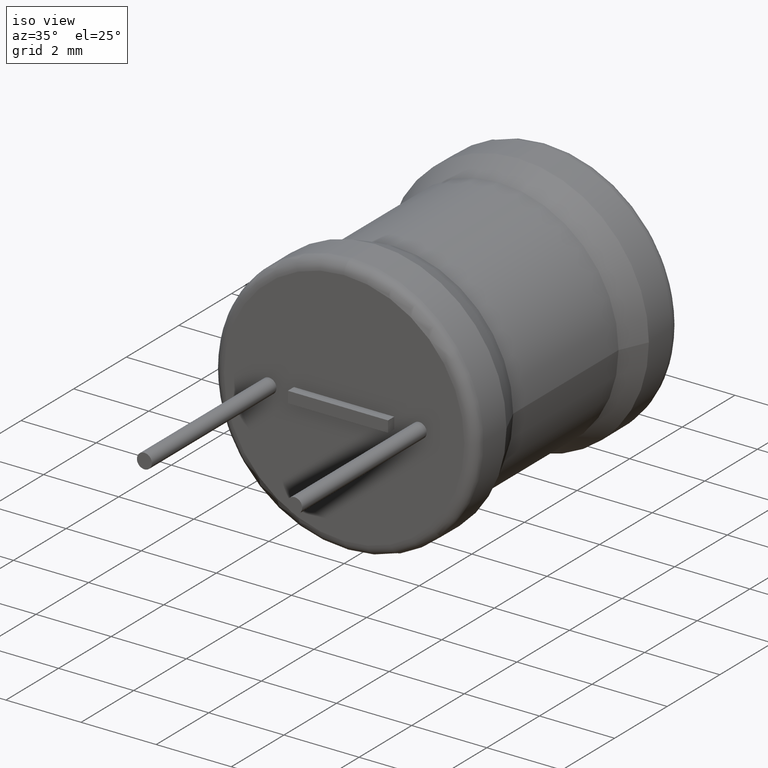
[diagram: clean part render]
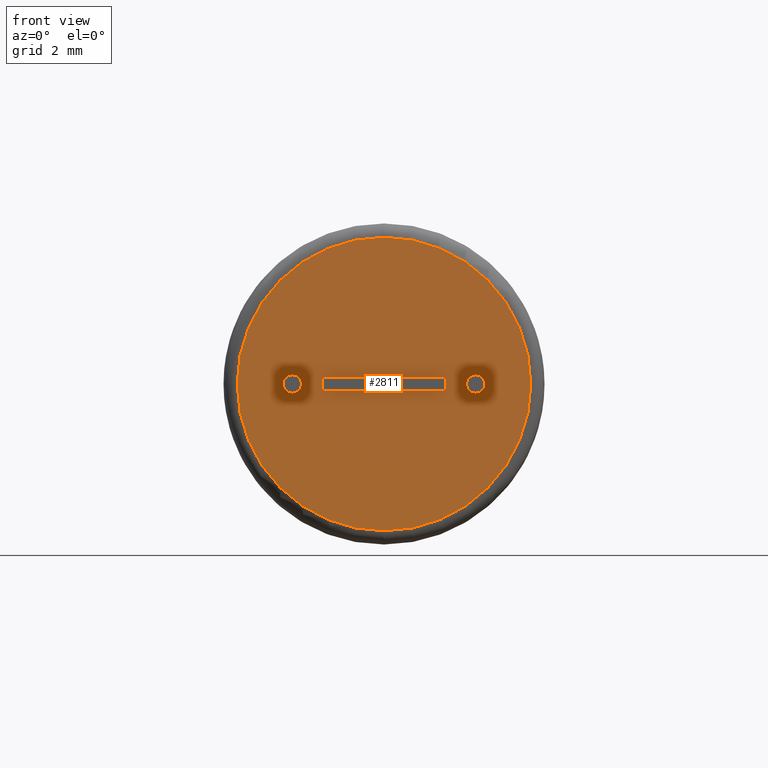
[diagram: tour spotlight — one face highlighted and labeled with its STEP entity id]
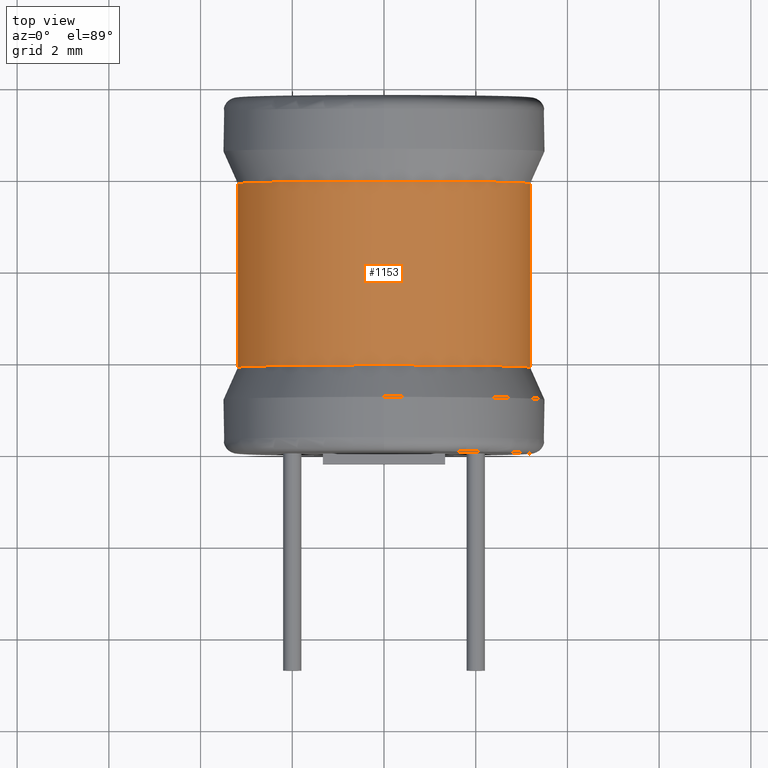
[diagram: tour spotlight — one face highlighted and labeled with its STEP entity id]
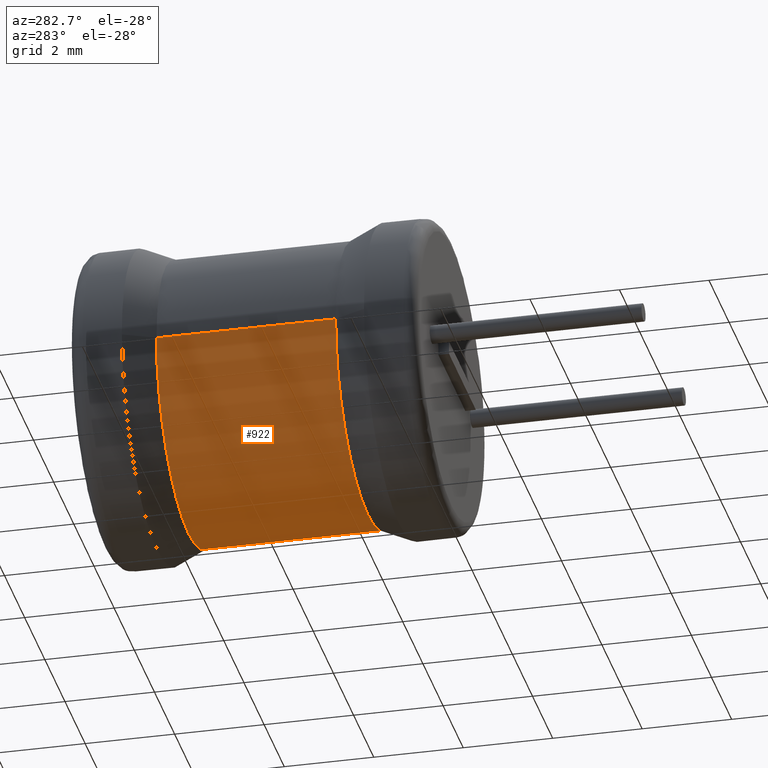
[diagram: tour spotlight — one face highlighted and labeled with its STEP entity id]
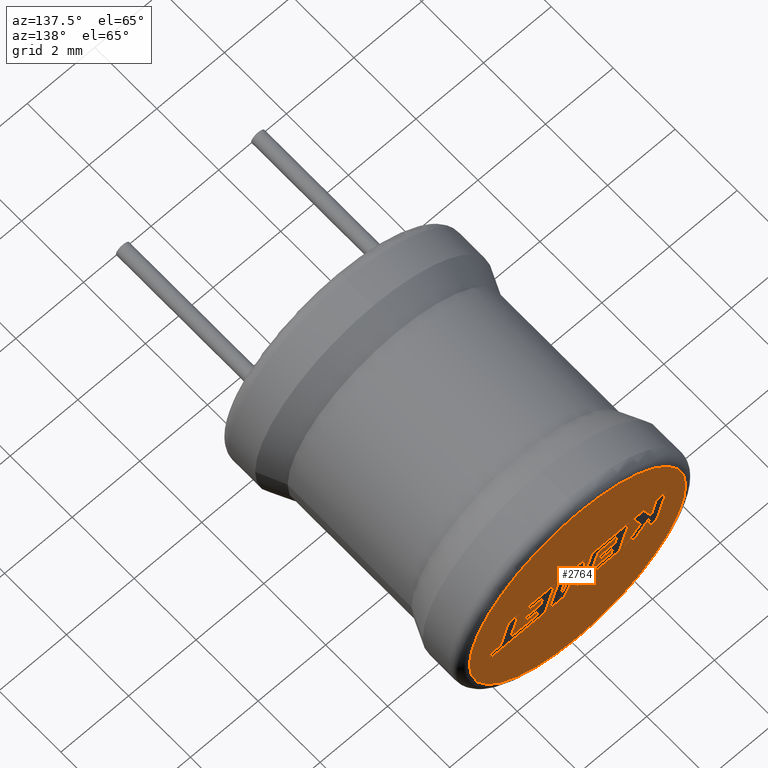
[diagram: tour spotlight — one face highlighted and labeled with its STEP entity id]
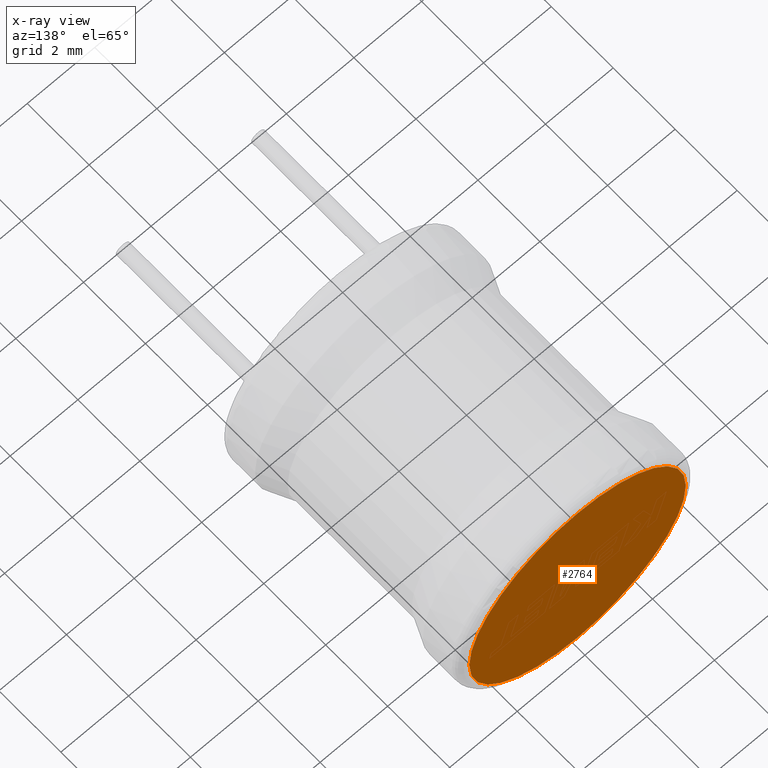
[diagram: x-ray of the same camera — body ghosted, this tour face saturated]
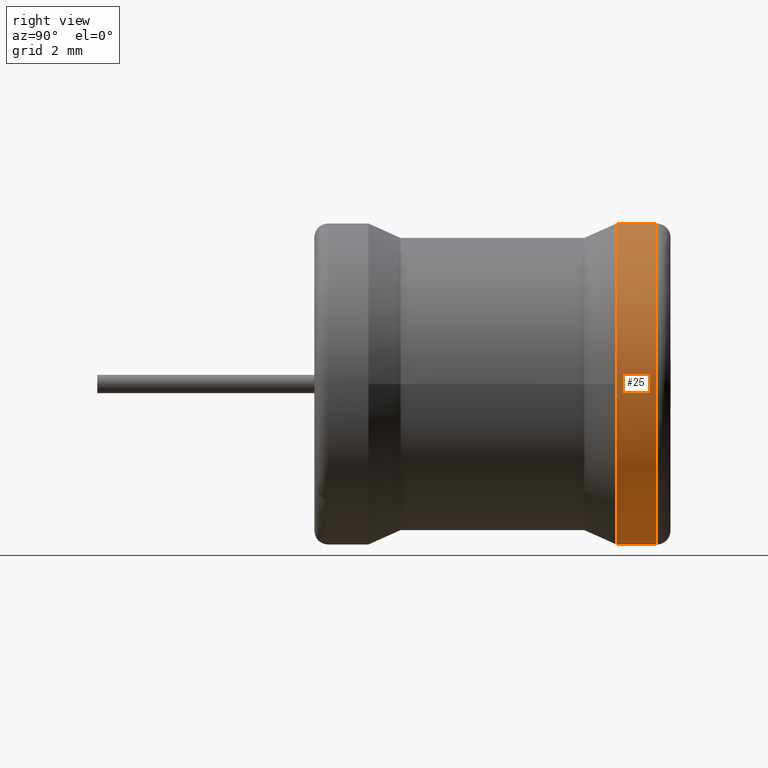
[diagram: tour spotlight — one face highlighted and labeled with its STEP entity id]
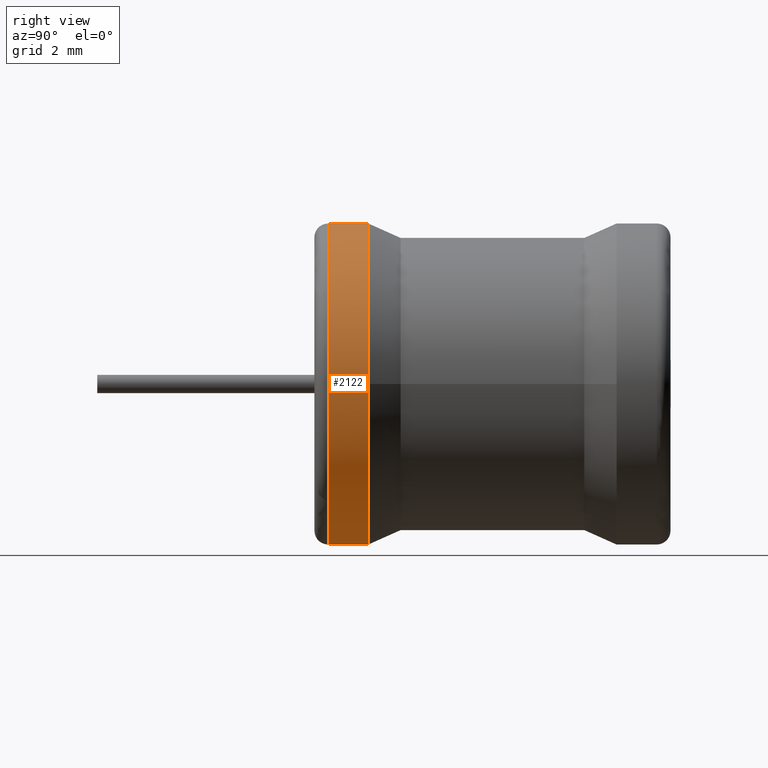
[diagram: tour spotlight — one face highlighted and labeled with its STEP entity id]
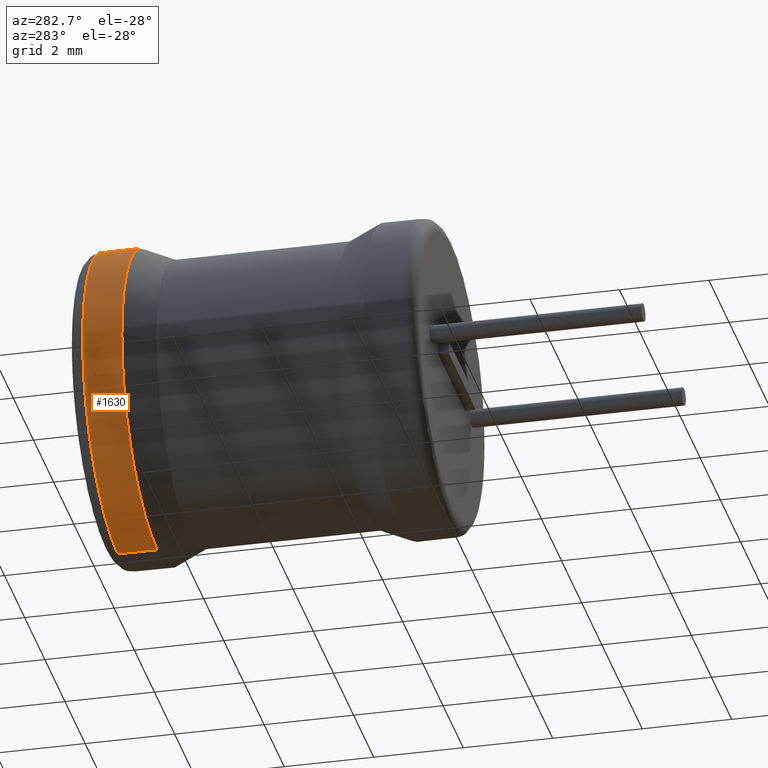
[diagram: tour spotlight — one face highlighted and labeled with its STEP entity id]
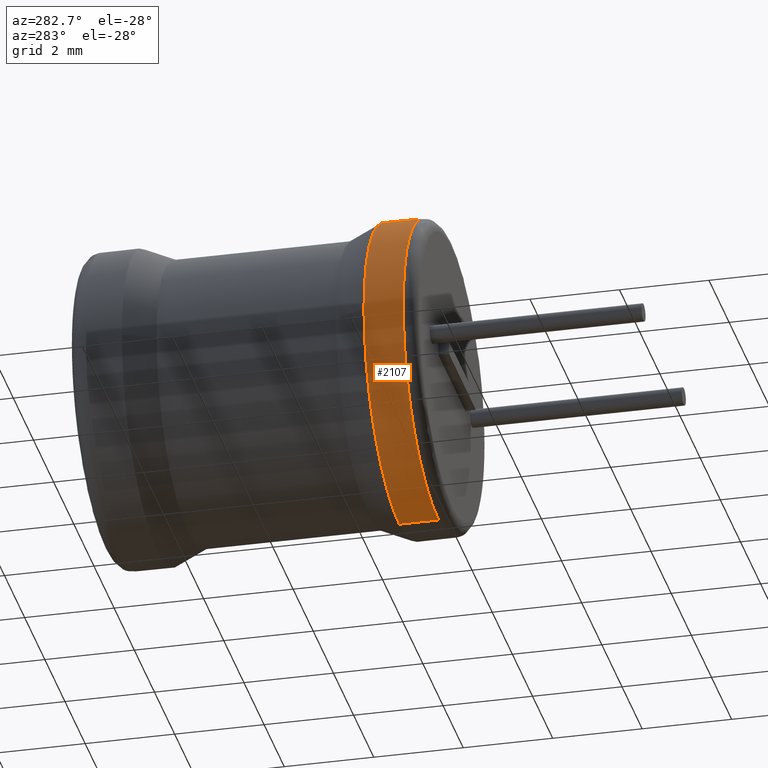
[diagram: tour spotlight — one face highlighted and labeled with its STEP entity id]
A machine part: a face-by-face anatomy tour. The part has 84 B-rep faces; the first image is the clean iso view, then the 8 largest visible faces are spotlighted one at a time (largest first), each with its STEP entity span.

Face 1 — front view, entity #2811. In plain terms, the highlighted planar face has unit normal (0, 1, 0).
Definition (entity closure, byte-faithful):
#4 = CARTESIAN_POINT ( 'NONE',  ( 2.000000000000000000, 0.0000000000000000000, -0.2000000000000002300 ) ) ;
#86 = LINE ( 'NONE', #212, #1811 ) ;
#178 = EDGE_LOOP ( 'NONE', ( #1290, #2364 ) ) ;
#193 = VERTEX_POINT ( 'NONE', #1120 ) ;
#212 = CARTESIAN_POINT ( 'NONE',  ( 6.018531076210112000E-033, 0.0000000000000000000, -0.1500000000000002700 ) ) ;
#216 = EDGE_CURVE ( 'NONE', #2393, #457, #1850, .T. ) ;
#243 = CARTESIAN_POINT ( 'NONE',  ( 4.102566777143633300E-016, 0.0000000000000000000, -3.200000000000000200 ) ) ;
#278 = VECTOR ( 'NONE', #2147, 1000.000000000000000 ) ;
#311 = CARTESIAN_POINT ( 'NONE',  ( 0.0000000000000000000, 0.0000000000000000000, 3.200000000000000200 ) ) ;
#339 = ORIENTED_EDGE ( 'NONE', *, *, #2877, .F. ) ;
#397 = LINE ( 'NONE', #1354, #718 ) ;
#419 = ORIENTED_EDGE ( 'NONE', *, *, #750, .F. ) ;
#436 = DIRECTION ( 'NONE',  ( -0.0000000000000000000, 1.000000000000000000, -0.0000000000000000000 ) ) ;
#457 = VERTEX_POINT ( 'NONE', #2369 ) ;
#510 = ORIENTED_EDGE ( 'NONE', *, *, #216, .T. ) ;
#528 = DIRECTION ( 'NONE',  ( 0.0000000000000000000, 1.000000000000000000, 0.0000000000000000000 ) ) ;
#611 = DIRECTION ( 'NONE',  ( -0.0000000000000000000, -1.000000000000000000, -0.0000000000000000000 ) ) ;
#689 = CARTESIAN_POINT ( 'NONE',  ( 2.000000000000000000, 0.0000000000000000000, 0.0000000000000000000 ) ) ;
#693 = AXIS2_PLACEMENT_3D ( 'NONE', #689, #436, #2735 ) ;
#718 = VECTOR ( 'NONE', #2348, 1000.000000000000000 ) ;
#750 = EDGE_CURVE ( 'NONE', #788, #193, #1908, .T. ) ;
#776 = CARTESIAN_POINT ( 'NONE',  ( -2.000000000000000000, 0.0000000000000000000, 0.0000000000000000000 ) ) ;
#788 = VERTEX_POINT ( 'NONE', #1057 ) ;
#797 = ORIENTED_EDGE ( 'NONE', *, *, #1820, .F. ) ;
#873 = DIRECTION ( 'NONE',  ( 0.0000000000000000000, -0.0000000000000000000, -1.000000000000000000 ) ) ;
#879 = DIRECTION ( 'NONE',  ( 0.0000000000000000000, 0.0000000000000000000, 1.000000000000000000 ) ) ;
#882 = VERTEX_POINT ( 'NONE', #311 ) ;
#890 = VERTEX_POINT ( 'NONE', #1404 ) ;
#914 = CIRCLE ( 'NONE', #2507, 3.200000000000000200 ) ;
#967 = EDGE_LOOP ( 'NONE', ( #2049, #1715, #2336, #339 ) ) ;
#977 = EDGE_CURVE ( 'NONE', #2838, #890, #1474, .T. ) ;
#1037 = CARTESIAN_POINT ( 'NONE',  ( 0.0000000000000000000, 0.0000000000000000000, 0.0000000000000000000 ) ) ;
#1045 = AXIS2_PLACEMENT_3D ( 'NONE', #1037, #2646, #1713 ) ;
#1057 = CARTESIAN_POINT ( 'NONE',  ( -2.000000000000000000, 0.0000000000000000000, 0.2000000000000002300 ) ) ;
#1107 = CARTESIAN_POINT ( 'NONE',  ( 1.334000000000000100, -0.0000000000000000000, -0.1500000000000006900 ) ) ;
#1114 = EDGE_LOOP ( 'NONE', ( #419, #797 ) ) ;
#1120 = CARTESIAN_POINT ( 'NONE',  ( -2.000000000000000000, 0.0000000000000000000, -0.2000000000000002300 ) ) ;
#1164 = CARTESIAN_POINT ( 'NONE',  ( 0.0000000000000000000, 0.0000000000000000000, 0.0000000000000000000 ) ) ;
#1168 = VECTOR ( 'NONE', #873, 1000.000000000000000 ) ;
#1264 = CIRCLE ( 'NONE', #1929, 0.2000000000000002300 ) ;
#1290 = ORIENTED_EDGE ( 'NONE', *, *, #1940, .T. ) ;
#1321 = CARTESIAN_POINT ( 'NONE',  ( 2.000000000000000000, 0.0000000000000000000, 0.0000000000000000000 ) ) ;
#1335 = AXIS2_PLACEMENT_3D ( 'NONE', #1988, #611, #2002 ) ;
#1354 = CARTESIAN_POINT ( 'NONE',  ( 0.0000000000000000000, 0.0000000000000000000, 0.1499999999999996300 ) ) ;
#1404 = CARTESIAN_POINT ( 'NONE',  ( -1.334000000000000100, 0.0000000000000000000, -0.1500000000000006900 ) ) ;
#1474 = LINE ( 'NONE', #1694, #278 ) ;
#1490 = EDGE_CURVE ( 'NONE', #2863, #882, #914, .T. ) ;
#1549 = DIRECTION ( 'NONE',  ( 1.000000000000000000, 0.0000000000000000000, 3.047794712759101800E-016 ) ) ;
#1566 = VERTEX_POINT ( 'NONE', #1107 ) ;
#1571 = DIRECTION ( 'NONE',  ( 0.0000000000000000000, 0.0000000000000000000, -1.000000000000000000 ) ) ;
#1688 = CIRCLE ( 'NONE', #2640, 0.2000000000000002300 ) ;
#1694 = CARTESIAN_POINT ( 'NONE',  ( -1.334000000000000100, -0.0000000000000000000, -0.1500000000000006900 ) ) ;
#1713 = DIRECTION ( 'NONE',  ( 0.0000000000000000000, 0.0000000000000000000, 1.000000000000000000 ) ) ;
#1715 = ORIENTED_EDGE ( 'NONE', *, *, #2754, .F. ) ;
#1740 = CARTESIAN_POINT ( 'NONE',  ( 1.334000000000000100, 0.0000000000000000000, 0.1499999999999992700 ) ) ;
#1811 = VECTOR ( 'NONE', #1549, 1000.000000000000000 ) ;
#1820 = EDGE_CURVE ( 'NONE', #193, #788, #1264, .T. ) ;
#1834 = EDGE_LOOP ( 'NONE', ( #1901, #510 ) ) ;
#1850 = CIRCLE ( 'NONE', #693, 0.2000000000000002300 ) ;
#1875 = FACE_OUTER_BOUND ( 'NONE', #178, .T. ) ;
#1901 = ORIENTED_EDGE ( 'NONE', *, *, #2400, .T. ) ;
#1908 = CIRCLE ( 'NONE', #1335, 0.2000000000000002300 ) ;
#1929 = AXIS2_PLACEMENT_3D ( 'NONE', #776, #2846, #2382 ) ;
#1940 = EDGE_CURVE ( 'NONE', #882, #2863, #2368, .T. ) ;
#1959 = VERTEX_POINT ( 'NONE', #1740 ) ;
#1988 = CARTESIAN_POINT ( 'NONE',  ( -2.000000000000000000, 0.0000000000000000000, 0.0000000000000000000 ) ) ;
#2002 = DIRECTION ( 'NONE',  ( 0.0000000000000000000, 0.0000000000000000000, 1.000000000000000000 ) ) ;
#2020 = CARTESIAN_POINT ( 'NONE',  ( 1.334000000000000100, -0.0000000000000000000, -0.1500000000000006900 ) ) ;
#2049 = ORIENTED_EDGE ( 'NONE', *, *, #2119, .T. ) ;
#2110 = CARTESIAN_POINT ( 'NONE',  ( -1.334000000000000100, 0.0000000000000000000, 0.1499999999999992700 ) ) ;
#2119 = EDGE_CURVE ( 'NONE', #1959, #1566, #2645, .T. ) ;
#2147 = DIRECTION ( 'NONE',  ( -0.0000000000000000000, -0.0000000000000000000, -1.000000000000000000 ) ) ;
#2322 = AXIS2_PLACEMENT_3D ( 'NONE', #1164, #528, #2805 ) ;
#2336 = ORIENTED_EDGE ( 'NONE', *, *, #977, .F. ) ;
#2339 = FACE_BOUND ( 'NONE', #1114, .T. ) ;
#2348 = DIRECTION ( 'NONE',  ( -1.000000000000000000, 0.0000000000000000000, -2.641422084391221300E-016 ) ) ;
#2364 = ORIENTED_EDGE ( 'NONE', *, *, #1490, .T. ) ;
#2368 = CIRCLE ( 'NONE', #1045, 3.200000000000000200 ) ;
#2369 = CARTESIAN_POINT ( 'NONE',  ( 2.000000000000000000, 0.0000000000000000000, 0.2000000000000002300 ) ) ;
#2382 = DIRECTION ( 'NONE',  ( 0.0000000000000000000, 0.0000000000000000000, 1.000000000000000000 ) ) ;
#2393 = VERTEX_POINT ( 'NONE', #4 ) ;
#2400 = EDGE_CURVE ( 'NONE', #457, #2393, #1688, .T. ) ;
#2507 = AXIS2_PLACEMENT_3D ( 'NONE', #2965, #2937, #879 ) ;
#2640 = AXIS2_PLACEMENT_3D ( 'NONE', #1321, #2964, #1571 ) ;
#2645 = LINE ( 'NONE', #2020, #1168 ) ;
#2646 = DIRECTION ( 'NONE',  ( -0.0000000000000000000, -1.000000000000000000, -0.0000000000000000000 ) ) ;
#2655 = FACE_BOUND ( 'NONE', #967, .T. ) ;
#2735 = DIRECTION ( 'NONE',  ( 0.0000000000000000000, 0.0000000000000000000, -1.000000000000000000 ) ) ;
#2754 = EDGE_CURVE ( 'NONE', #890, #1566, #86, .T. ) ;
#2803 = PLANE ( 'NONE',  #2322 ) ;
#2805 = DIRECTION ( 'NONE',  ( 0.0000000000000000000, -0.0000000000000000000, 1.000000000000000000 ) ) ;
#2811 = ADVANCED_FACE ( 'NONE', ( #2339, #2845, #1875, #2655 ), #2803, .F. ) ;
#2838 = VERTEX_POINT ( 'NONE', #2110 ) ;
#2845 = FACE_BOUND ( 'NONE', #1834, .T. ) ;
#2846 = DIRECTION ( 'NONE',  ( -0.0000000000000000000, -1.000000000000000000, -0.0000000000000000000 ) ) ;
#2863 = VERTEX_POINT ( 'NONE', #243 ) ;
#2877 = EDGE_CURVE ( 'NONE', #1959, #2838, #397, .T. ) ;
#2937 = DIRECTION ( 'NONE',  ( -0.0000000000000000000, -1.000000000000000000, -0.0000000000000000000 ) ) ;
#2964 = DIRECTION ( 'NONE',  ( -0.0000000000000000000, 1.000000000000000000, -0.0000000000000000000 ) ) ;
#2965 = CARTESIAN_POINT ( 'NONE',  ( 0.0000000000000000000, 0.0000000000000000000, 0.0000000000000000000 ) ) ;

Face 2 — top view, entity #1153. In plain terms, the highlighted cylindrical surface (partial cylindrical patch) has radius 3.185 mm, axis along (0, -1, -0).
Definition (entity closure, byte-faithful):
#2 = EDGE_CURVE ( 'NONE', #956, #679, #966, .T. ) ;
#95 = EDGE_LOOP ( 'NONE', ( #1437, #965, #332, #2424 ) ) ;
#290 = DIRECTION ( 'NONE',  ( 8.070266646938738300E-018, -1.000000000000000000, -0.0000000000000000000 ) ) ;
#332 = ORIENTED_EDGE ( 'NONE', *, *, #1403, .F. ) ;
#349 = EDGE_CURVE ( 'NONE', #460, #475, #939, .T. ) ;
#411 = AXIS2_PLACEMENT_3D ( 'NONE', #2018, #643, #422 ) ;
#422 = DIRECTION ( 'NONE',  ( 1.000000000000000000, 8.070266646938749100E-018, 0.0000000000000000000 ) ) ;
#460 = VERTEX_POINT ( 'NONE', #2153 ) ;
#471 = FACE_OUTER_BOUND ( 'NONE', #95, .T. ) ;
#475 = VERTEX_POINT ( 'NONE', #2609 ) ;
#504 = DIRECTION ( 'NONE',  ( 1.000000000000000000, 0.0000000000000000000, 0.0000000000000000000 ) ) ;
#643 = DIRECTION ( 'NONE',  ( 8.070266646938738300E-018, -1.000000000000000000, -0.0000000000000000000 ) ) ;
#679 = VERTEX_POINT ( 'NONE', #1611 ) ;
#722 = CARTESIAN_POINT ( 'NONE',  ( 3.184999999999999600, 5.308706039187835700E-016, 0.0000000000000000000 ) ) ;
#889 = VECTOR ( 'NONE', #1234, 1000.000000000000000 ) ;
#939 = LINE ( 'NONE', #722, #2745 ) ;
#956 = VERTEX_POINT ( 'NONE', #2210 ) ;
#965 = ORIENTED_EDGE ( 'NONE', *, *, #2, .T. ) ;
#966 = LINE ( 'NONE', #1739, #889 ) ;
#1116 = DIRECTION ( 'NONE',  ( 1.000000000000000000, 0.0000000000000000000, 0.0000000000000000000 ) ) ;
#1153 = ADVANCED_FACE ( 'NONE', ( #471 ), #1439, .T. ) ;
#1230 = AXIS2_PLACEMENT_3D ( 'NONE', #2328, #2797, #504 ) ;
#1234 = DIRECTION ( 'NONE',  ( 8.070266646938738300E-018, -1.000000000000000000, -0.0000000000000000000 ) ) ;
#1403 = EDGE_CURVE ( 'NONE', #475, #679, #2204, .T. ) ;
#1437 = ORIENTED_EDGE ( 'NONE', *, *, #2437, .T. ) ;
#1439 = CYLINDRICAL_SURFACE ( 'NONE', #411, 3.184999999999999600 ) ;
#1611 = CARTESIAN_POINT ( 'NONE',  ( -3.184999999999999600, 1.880000000000003400, 3.900500055284319300E-016 ) ) ;
#1617 = AXIS2_PLACEMENT_3D ( 'NONE', #2482, #2272, #1116 ) ;
#1739 = CARTESIAN_POINT ( 'NONE',  ( -3.184999999999999600, 4.794630053777836700E-016, 3.900500055284319300E-016 ) ) ;
#2018 = CARTESIAN_POINT ( 'NONE',  ( 1.710569414459005200E-046, 5.051668046482836700E-016, 0.0000000000000000000 ) ) ;
#2153 = CARTESIAN_POINT ( 'NONE',  ( 3.184999999999999600, 5.884800000000001100, 4.093381926150028000E-016 ) ) ;
#2204 = CIRCLE ( 'NONE', #1230, 3.184999999999999600 ) ;
#2210 = CARTESIAN_POINT ( 'NONE',  ( -3.184999999999999600, 5.884800000000001100, 0.0000000000000000000 ) ) ;
#2272 = DIRECTION ( 'NONE',  ( 8.070266646938738300E-018, -1.000000000000000000, -0.0000000000000000000 ) ) ;
#2328 = CARTESIAN_POINT ( 'NONE',  ( -1.517210129624485300E-017, 1.880000000000003400, 0.0000000000000000000 ) ) ;
#2424 = ORIENTED_EDGE ( 'NONE', *, *, #349, .F. ) ;
#2437 = EDGE_CURVE ( 'NONE', #460, #956, #2465, .T. ) ;
#2465 = CIRCLE ( 'NONE', #1617, 3.184999999999999600 ) ;
#2482 = CARTESIAN_POINT ( 'NONE',  ( -4.749190516390508600E-017, 5.884800000000001100, 0.0000000000000000000 ) ) ;
#2609 = CARTESIAN_POINT ( 'NONE',  ( 3.184999999999999600, 1.880000000000003400, 0.0000000000000000000 ) ) ;
#2745 = VECTOR ( 'NONE', #290, 1000.000000000000000 ) ;
#2797 = DIRECTION ( 'NONE',  ( 8.070266646938738300E-018, -1.000000000000000000, -0.0000000000000000000 ) ) ;

Face 3 — auxiliary view, entity #922. In plain terms, the highlighted cylindrical surface (partial cylindrical patch) has radius 3.185 mm, axis along (0, -1, -0).
Definition (entity closure, byte-faithful):
#2 = EDGE_CURVE ( 'NONE', #956, #679, #966, .T. ) ;
#203 = AXIS2_PLACEMENT_3D ( 'NONE', #953, #2307, #2793 ) ;
#224 = AXIS2_PLACEMENT_3D ( 'NONE', #1111, #2233, #2224 ) ;
#290 = DIRECTION ( 'NONE',  ( 8.070266646938738300E-018, -1.000000000000000000, -0.0000000000000000000 ) ) ;
#349 = EDGE_CURVE ( 'NONE', #460, #475, #939, .T. ) ;
#460 = VERTEX_POINT ( 'NONE', #2153 ) ;
#475 = VERTEX_POINT ( 'NONE', #2609 ) ;
#507 = DIRECTION ( 'NONE',  ( 8.070266646938738300E-018, -1.000000000000000000, -0.0000000000000000000 ) ) ;
#679 = VERTEX_POINT ( 'NONE', #1611 ) ;
#710 = CARTESIAN_POINT ( 'NONE',  ( 1.710569414459005200E-046, 5.051668046482836700E-016, 0.0000000000000000000 ) ) ;
#722 = CARTESIAN_POINT ( 'NONE',  ( 3.184999999999999600, 5.308706039187835700E-016, 0.0000000000000000000 ) ) ;
#723 = CYLINDRICAL_SURFACE ( 'NONE', #1757, 3.184999999999999600 ) ;
#749 = CIRCLE ( 'NONE', #203, 3.184999999999999600 ) ;
#889 = VECTOR ( 'NONE', #1234, 1000.000000000000000 ) ;
#922 = ADVANCED_FACE ( 'NONE', ( #1363 ), #723, .T. ) ;
#931 = CIRCLE ( 'NONE', #224, 3.184999999999999600 ) ;
#939 = LINE ( 'NONE', #722, #2745 ) ;
#953 = CARTESIAN_POINT ( 'NONE',  ( -1.517210129624485300E-017, 1.880000000000003400, 0.0000000000000000000 ) ) ;
#956 = VERTEX_POINT ( 'NONE', #2210 ) ;
#966 = LINE ( 'NONE', #1739, #889 ) ;
#1076 = ORIENTED_EDGE ( 'NONE', *, *, #349, .T. ) ;
#1111 = CARTESIAN_POINT ( 'NONE',  ( -4.749190516390508600E-017, 5.884800000000001100, 0.0000000000000000000 ) ) ;
#1142 = EDGE_CURVE ( 'NONE', #956, #460, #931, .T. ) ;
#1156 = ORIENTED_EDGE ( 'NONE', *, *, #1142, .T. ) ;
#1234 = DIRECTION ( 'NONE',  ( 8.070266646938738300E-018, -1.000000000000000000, -0.0000000000000000000 ) ) ;
#1363 = FACE_OUTER_BOUND ( 'NONE', #1847, .T. ) ;
#1611 = CARTESIAN_POINT ( 'NONE',  ( -3.184999999999999600, 1.880000000000003400, 3.900500055284319300E-016 ) ) ;
#1739 = CARTESIAN_POINT ( 'NONE',  ( -3.184999999999999600, 4.794630053777836700E-016, 3.900500055284319300E-016 ) ) ;
#1746 = EDGE_CURVE ( 'NONE', #679, #475, #749, .T. ) ;
#1757 = AXIS2_PLACEMENT_3D ( 'NONE', #710, #507, #2576 ) ;
#1847 = EDGE_LOOP ( 'NONE', ( #2620, #1156, #1076, #2686 ) ) ;
#2153 = CARTESIAN_POINT ( 'NONE',  ( 3.184999999999999600, 5.884800000000001100, 4.093381926150028000E-016 ) ) ;
#2210 = CARTESIAN_POINT ( 'NONE',  ( -3.184999999999999600, 5.884800000000001100, 0.0000000000000000000 ) ) ;
#2224 = DIRECTION ( 'NONE',  ( 1.000000000000000000, 0.0000000000000000000, 0.0000000000000000000 ) ) ;
#2233 = DIRECTION ( 'NONE',  ( 8.070266646938738300E-018, -1.000000000000000000, -0.0000000000000000000 ) ) ;
#2307 = DIRECTION ( 'NONE',  ( 8.070266646938738300E-018, -1.000000000000000000, -0.0000000000000000000 ) ) ;
#2576 = DIRECTION ( 'NONE',  ( 1.000000000000000000, 8.070266646938749100E-018, 0.0000000000000000000 ) ) ;
#2609 = CARTESIAN_POINT ( 'NONE',  ( 3.184999999999999600, 1.880000000000003400, 0.0000000000000000000 ) ) ;
#2620 = ORIENTED_EDGE ( 'NONE', *, *, #2, .F. ) ;
#2686 = ORIENTED_EDGE ( 'NONE', *, *, #1746, .F. ) ;
#2745 = VECTOR ( 'NONE', #290, 1000.000000000000000 ) ;
#2793 = DIRECTION ( 'NONE',  ( 1.000000000000000000, 0.0000000000000000000, 0.0000000000000000000 ) ) ;

Face 4 — auxiliary view, entity #2764. An x-ray twin of the same camera follows (body ghosted, this face saturated) — the face is partly hidden behind the body. In plain terms, the highlighted planar face has unit normal (0, 1, 0).
Definition (entity closure, byte-faithful):
#165 = DIRECTION ( 'NONE',  ( 0.0000000000000000000, 1.000000000000000000, 0.0000000000000000000 ) ) ;
#406 = DIRECTION ( 'NONE',  ( 0.0000000000000000000, 0.0000000000000000000, 1.000000000000000000 ) ) ;
#559 = CIRCLE ( 'NONE', #795, 3.200000000000000200 ) ;
#591 = CARTESIAN_POINT ( 'NONE',  ( 0.0000000000000000000, 7.764800000000000100, 0.0000000000000000000 ) ) ;
#729 = CARTESIAN_POINT ( 'NONE',  ( 0.0000000000000000000, 7.764800000000000100, 0.0000000000000000000 ) ) ;
#739 = CARTESIAN_POINT ( 'NONE',  ( 0.0000000000000000000, 7.764800000000000100, 0.0000000000000000000 ) ) ;
#792 = FACE_OUTER_BOUND ( 'NONE', #2624, .T. ) ;
#795 = AXIS2_PLACEMENT_3D ( 'NONE', #591, #165, #406 ) ;
#1097 = CARTESIAN_POINT ( 'NONE',  ( 4.102566777143633300E-016, 7.764800000000000100, -3.200000000000000200 ) ) ;
#1137 = VERTEX_POINT ( 'NONE', #1776 ) ;
#1146 = DIRECTION ( 'NONE',  ( 0.0000000000000000000, 0.0000000000000000000, 1.000000000000000000 ) ) ;
#1169 = DIRECTION ( 'NONE',  ( 0.0000000000000000000, -0.0000000000000000000, 1.000000000000000000 ) ) ;
#1171 = ORIENTED_EDGE ( 'NONE', *, *, #2502, .T. ) ;
#1183 = VERTEX_POINT ( 'NONE', #1097 ) ;
#1206 = DIRECTION ( 'NONE',  ( 0.0000000000000000000, 1.000000000000000000, 0.0000000000000000000 ) ) ;
#1232 = AXIS2_PLACEMENT_3D ( 'NONE', #739, #1206, #1169 ) ;
#1395 = PLANE ( 'NONE',  #1232 ) ;
#1641 = DIRECTION ( 'NONE',  ( 0.0000000000000000000, 1.000000000000000000, 0.0000000000000000000 ) ) ;
#1776 = CARTESIAN_POINT ( 'NONE',  ( 0.0000000000000000000, 7.764800000000000100, 3.200000000000000200 ) ) ;
#2022 = AXIS2_PLACEMENT_3D ( 'NONE', #729, #1641, #1146 ) ;
#2154 = ORIENTED_EDGE ( 'NONE', *, *, #2351, .T. ) ;
#2351 = EDGE_CURVE ( 'NONE', #1137, #1183, #559, .T. ) ;
#2502 = EDGE_CURVE ( 'NONE', #1183, #1137, #2642, .T. ) ;
#2624 = EDGE_LOOP ( 'NONE', ( #2154, #1171 ) ) ;
#2642 = CIRCLE ( 'NONE', #2022, 3.200000000000000200 ) ;
#2764 = ADVANCED_FACE ( 'NONE', ( #792 ), #1395, .T. ) ;

Face 5 — right view, entity #25. In plain terms, the highlighted cylindrical surface (partial cylindrical patch) has radius 3.5 mm, axis along (-0, -1, -0).
Definition (entity closure, byte-faithful):
#25 = ADVANCED_FACE ( 'NONE', ( #2000 ), #2927, .T. ) ;
#27 = CARTESIAN_POINT ( 'NONE',  ( 4.286263797015735600E-016, 7.764800000000000100, 3.500000000000000000 ) ) ;
#42 = ORIENTED_EDGE ( 'NONE', *, *, #2632, .F. ) ;
#92 = AXIS2_PLACEMENT_3D ( 'NONE', #2747, #1372, #2720 ) ;
#222 = VERTEX_POINT ( 'NONE', #699 ) ;
#251 = VERTEX_POINT ( 'NONE', #2278 ) ;
#363 = DIRECTION ( 'NONE',  ( -0.0000000000000000000, -1.000000000000000000, -0.0000000000000000000 ) ) ;
#393 = AXIS2_PLACEMENT_3D ( 'NONE', #1884, #2117, #1217 ) ;
#412 = DIRECTION ( 'NONE',  ( -0.0000000000000000000, -1.000000000000000000, -0.0000000000000000000 ) ) ;
#434 = VERTEX_POINT ( 'NONE', #1913 ) ;
#490 = CIRCLE ( 'NONE', #92, 3.500000000000000400 ) ;
#699 = CARTESIAN_POINT ( 'NONE',  ( 4.286263797015735600E-016, 7.464800000000000300, 3.500000000000000000 ) ) ;
#712 = AXIS2_PLACEMENT_3D ( 'NONE', #1944, #2433, #2171 ) ;
#724 = VECTOR ( 'NONE', #412, 1000.000000000000000 ) ;
#1015 = VERTEX_POINT ( 'NONE', #1526 ) ;
#1074 = CIRCLE ( 'NONE', #393, 3.500000000000000400 ) ;
#1086 = ORIENTED_EDGE ( 'NONE', *, *, #1985, .T. ) ;
#1217 = DIRECTION ( 'NONE',  ( 1.000000000000000000, 0.0000000000000000000, 0.0000000000000000000 ) ) ;
#1244 = DIRECTION ( 'NONE',  ( 0.0000000000000000000, 0.0000000000000000000, 1.000000000000000000 ) ) ;
#1247 = LINE ( 'NONE', #2971, #724 ) ;
#1372 = DIRECTION ( 'NONE',  ( 8.070266646938738300E-018, -1.000000000000000000, -0.0000000000000000000 ) ) ;
#1471 = LINE ( 'NONE', #27, #2586 ) ;
#1494 = EDGE_CURVE ( 'NONE', #434, #2223, #490, .T. ) ;
#1526 = CARTESIAN_POINT ( 'NONE',  ( 1.203706215242022400E-032, 6.588800000000000900, -3.500000000000000900 ) ) ;
#1557 = EDGE_CURVE ( 'NONE', #1015, #434, #1074, .T. ) ;
#1636 = ORIENTED_EDGE ( 'NONE', *, *, #2934, .T. ) ;
#1783 = ORIENTED_EDGE ( 'NONE', *, *, #1494, .F. ) ;
#1840 = AXIS2_PLACEMENT_3D ( 'NONE', #2631, #363, #1244 ) ;
#1884 = CARTESIAN_POINT ( 'NONE',  ( -5.317337288334995800E-017, 6.588800000000000900, 0.0000000000000000000 ) ) ;
#1913 = CARTESIAN_POINT ( 'NONE',  ( 3.500000000000000400, 6.588800000000000900, 4.286263797015737100E-016 ) ) ;
#1944 = CARTESIAN_POINT ( 'NONE',  ( 0.0000000000000000000, 7.764800000000000100, 0.0000000000000000000 ) ) ;
#1960 = CIRCLE ( 'NONE', #1840, 3.500000000000000000 ) ;
#1985 = EDGE_CURVE ( 'NONE', #251, #222, #1960, .T. ) ;
#2000 = FACE_OUTER_BOUND ( 'NONE', #2806, .T. ) ;
#2082 = ORIENTED_EDGE ( 'NONE', *, *, #1557, .F. ) ;
#2100 = DIRECTION ( 'NONE',  ( -0.0000000000000000000, -1.000000000000000000, -0.0000000000000000000 ) ) ;
#2117 = DIRECTION ( 'NONE',  ( 8.070266646938738300E-018, -1.000000000000000000, -0.0000000000000000000 ) ) ;
#2171 = DIRECTION ( 'NONE',  ( 0.0000000000000000000, 0.0000000000000000000, -1.000000000000000000 ) ) ;
#2223 = VERTEX_POINT ( 'NONE', #2945 ) ;
#2278 = CARTESIAN_POINT ( 'NONE',  ( 0.0000000000000000000, 7.464800000000000300, -3.500000000000000000 ) ) ;
#2433 = DIRECTION ( 'NONE',  ( -0.0000000000000000000, -1.000000000000000000, -0.0000000000000000000 ) ) ;
#2586 = VECTOR ( 'NONE', #2100, 1000.000000000000000 ) ;
#2631 = CARTESIAN_POINT ( 'NONE',  ( 0.0000000000000000000, 7.464800000000000300, 0.0000000000000000000 ) ) ;
#2632 = EDGE_CURVE ( 'NONE', #251, #1015, #1247, .T. ) ;
#2720 = DIRECTION ( 'NONE',  ( 1.000000000000000000, 0.0000000000000000000, 0.0000000000000000000 ) ) ;
#2747 = CARTESIAN_POINT ( 'NONE',  ( -5.317337288334995800E-017, 6.588800000000000900, 0.0000000000000000000 ) ) ;
#2806 = EDGE_LOOP ( 'NONE', ( #1086, #1636, #1783, #2082, #42 ) ) ;
#2927 = CYLINDRICAL_SURFACE ( 'NONE', #712, 3.500000000000000000 ) ;
#2934 = EDGE_CURVE ( 'NONE', #222, #2223, #1471, .T. ) ;
#2945 = CARTESIAN_POINT ( 'NONE',  ( 4.286263797015736600E-016, 6.588800000000000900, 3.500000000000000900 ) ) ;
#2971 = CARTESIAN_POINT ( 'NONE',  ( 0.0000000000000000000, 7.764800000000000100, -3.500000000000000000 ) ) ;

Face 6 — right view, entity #2122. In plain terms, the highlighted cylindrical surface (partial cylindrical patch) has radius 3.5 mm, axis along (-0, -1, -0).
Definition (entity closure, byte-faithful):
#52 = LINE ( 'NONE', #1221, #2408 ) ;
#62 = VERTEX_POINT ( 'NONE', #804 ) ;
#102 = DIRECTION ( 'NONE',  ( 8.070266646938738300E-018, -1.000000000000000000, -0.0000000000000000000 ) ) ;
#161 = VERTEX_POINT ( 'NONE', #241 ) ;
#183 = VECTOR ( 'NONE', #2074, 1000.000000000000000 ) ;
#219 = EDGE_CURVE ( 'NONE', #161, #2160, #1598, .T. ) ;
#241 = CARTESIAN_POINT ( 'NONE',  ( 4.286263797015735600E-016, 0.2999999999999999300, 3.500000000000000000 ) ) ;
#364 = CARTESIAN_POINT ( 'NONE',  ( 4.286263797015735600E-016, 7.764800000000000100, 3.500000000000000000 ) ) ;
#514 = CIRCLE ( 'NONE', #1390, 3.500000000000000400 ) ;
#561 = CYLINDRICAL_SURFACE ( 'NONE', #1030, 3.500000000000000000 ) ;
#755 = LINE ( 'NONE', #364, #183 ) ;
#804 = CARTESIAN_POINT ( 'NONE',  ( 4.286263797015736100E-016, 1.176000000000003500, 3.500000000000000900 ) ) ;
#861 = VERTEX_POINT ( 'NONE', #2344 ) ;
#915 = ORIENTED_EDGE ( 'NONE', *, *, #1038, .T. ) ;
#1000 = EDGE_CURVE ( 'NONE', #861, #2160, #52, .T. ) ;
#1030 = AXIS2_PLACEMENT_3D ( 'NONE', #2902, #1530, #1317 ) ;
#1038 = EDGE_CURVE ( 'NONE', #1894, #62, #1104, .T. ) ;
#1043 = ORIENTED_EDGE ( 'NONE', *, *, #2895, .T. ) ;
#1104 = CIRCLE ( 'NONE', #1447, 3.500000000000000400 ) ;
#1141 = DIRECTION ( 'NONE',  ( 0.0000000000000000000, 0.0000000000000000000, 1.000000000000000000 ) ) ;
#1221 = CARTESIAN_POINT ( 'NONE',  ( 0.0000000000000000000, 7.764800000000000100, -3.500000000000000000 ) ) ;
#1226 = ORIENTED_EDGE ( 'NONE', *, *, #1000, .F. ) ;
#1233 = CARTESIAN_POINT ( 'NONE',  ( -9.490633576799981000E-018, 1.176000000000003500, 0.0000000000000000000 ) ) ;
#1317 = DIRECTION ( 'NONE',  ( 0.0000000000000000000, 0.0000000000000000000, -1.000000000000000000 ) ) ;
#1379 = EDGE_LOOP ( 'NONE', ( #2471, #915, #1043, #2282, #1226 ) ) ;
#1390 = AXIS2_PLACEMENT_3D ( 'NONE', #1233, #102, #1711 ) ;
#1447 = AXIS2_PLACEMENT_3D ( 'NONE', #2889, #2266, #2243 ) ;
#1530 = DIRECTION ( 'NONE',  ( -0.0000000000000000000, -1.000000000000000000, -0.0000000000000000000 ) ) ;
#1532 = FACE_OUTER_BOUND ( 'NONE', #1379, .T. ) ;
#1598 = CIRCLE ( 'NONE', #2941, 3.500000000000000000 ) ;
#1711 = DIRECTION ( 'NONE',  ( 1.000000000000000000, 0.0000000000000000000, 0.0000000000000000000 ) ) ;
#1894 = VERTEX_POINT ( 'NONE', #2150 ) ;
#1916 = DIRECTION ( 'NONE',  ( -0.0000000000000000000, -1.000000000000000000, -0.0000000000000000000 ) ) ;
#2074 = DIRECTION ( 'NONE',  ( -0.0000000000000000000, -1.000000000000000000, -0.0000000000000000000 ) ) ;
#2122 = ADVANCED_FACE ( 'NONE', ( #1532 ), #561, .T. ) ;
#2150 = CARTESIAN_POINT ( 'NONE',  ( 3.500000000000000400, 1.176000000000003500, 0.0000000000000000000 ) ) ;
#2160 = VERTEX_POINT ( 'NONE', #2466 ) ;
#2243 = DIRECTION ( 'NONE',  ( 1.000000000000000000, 0.0000000000000000000, 0.0000000000000000000 ) ) ;
#2266 = DIRECTION ( 'NONE',  ( 8.070266646938738300E-018, -1.000000000000000000, -0.0000000000000000000 ) ) ;
#2282 = ORIENTED_EDGE ( 'NONE', *, *, #219, .T. ) ;
#2344 = CARTESIAN_POINT ( 'NONE',  ( 1.504632769052528000E-033, 1.176000000000003500, -3.500000000000000900 ) ) ;
#2408 = VECTOR ( 'NONE', #1916, 1000.000000000000000 ) ;
#2466 = CARTESIAN_POINT ( 'NONE',  ( 0.0000000000000000000, 0.2999999999999999300, -3.500000000000000000 ) ) ;
#2471 = ORIENTED_EDGE ( 'NONE', *, *, #2692, .T. ) ;
#2526 = DIRECTION ( 'NONE',  ( 0.0000000000000000000, 1.000000000000000000, 0.0000000000000000000 ) ) ;
#2692 = EDGE_CURVE ( 'NONE', #861, #1894, #514, .T. ) ;
#2723 = CARTESIAN_POINT ( 'NONE',  ( 0.0000000000000000000, 0.2999999999999999300, 0.0000000000000000000 ) ) ;
#2889 = CARTESIAN_POINT ( 'NONE',  ( -9.490633576799981000E-018, 1.176000000000003500, 0.0000000000000000000 ) ) ;
#2895 = EDGE_CURVE ( 'NONE', #62, #161, #755, .T. ) ;
#2902 = CARTESIAN_POINT ( 'NONE',  ( 0.0000000000000000000, 7.764800000000000100, 0.0000000000000000000 ) ) ;
#2941 = AXIS2_PLACEMENT_3D ( 'NONE', #2723, #2526, #1141 ) ;

Face 7 — auxiliary view, entity #1630. In plain terms, the highlighted cylindrical surface (partial cylindrical patch) has radius 3.5 mm, axis along (-0, -1, -0).
Definition (entity closure, byte-faithful):
#27 = CARTESIAN_POINT ( 'NONE',  ( 4.286263797015735600E-016, 7.764800000000000100, 3.500000000000000000 ) ) ;
#44 = ORIENTED_EDGE ( 'NONE', *, *, #1788, .F. ) ;
#151 = DIRECTION ( 'NONE',  ( 1.000000000000000000, 0.0000000000000000000, 0.0000000000000000000 ) ) ;
#171 = DIRECTION ( 'NONE',  ( -0.0000000000000000000, -1.000000000000000000, -0.0000000000000000000 ) ) ;
#222 = VERTEX_POINT ( 'NONE', #699 ) ;
#251 = VERTEX_POINT ( 'NONE', #2278 ) ;
#412 = DIRECTION ( 'NONE',  ( -0.0000000000000000000, -1.000000000000000000, -0.0000000000000000000 ) ) ;
#420 = CARTESIAN_POINT ( 'NONE',  ( -3.500000000000000400, 6.588800000000000900, 0.0000000000000000000 ) ) ;
#587 = VERTEX_POINT ( 'NONE', #420 ) ;
#588 = DIRECTION ( 'NONE',  ( -0.0000000000000000000, -1.000000000000000000, -0.0000000000000000000 ) ) ;
#699 = CARTESIAN_POINT ( 'NONE',  ( 4.286263797015735600E-016, 7.464800000000000300, 3.500000000000000000 ) ) ;
#724 = VECTOR ( 'NONE', #412, 1000.000000000000000 ) ;
#780 = EDGE_LOOP ( 'NONE', ( #2438, #2800, #1334, #44, #895 ) ) ;
#786 = EDGE_CURVE ( 'NONE', #2223, #587, #2483, .T. ) ;
#895 = ORIENTED_EDGE ( 'NONE', *, *, #786, .F. ) ;
#1015 = VERTEX_POINT ( 'NONE', #1526 ) ;
#1172 = AXIS2_PLACEMENT_3D ( 'NONE', #1765, #1524, #151 ) ;
#1174 = CIRCLE ( 'NONE', #2865, 3.500000000000000400 ) ;
#1247 = LINE ( 'NONE', #2971, #724 ) ;
#1334 = ORIENTED_EDGE ( 'NONE', *, *, #2632, .T. ) ;
#1429 = AXIS2_PLACEMENT_3D ( 'NONE', #1438, #171, #1581 ) ;
#1438 = CARTESIAN_POINT ( 'NONE',  ( 0.0000000000000000000, 7.764800000000000100, 0.0000000000000000000 ) ) ;
#1471 = LINE ( 'NONE', #27, #2586 ) ;
#1524 = DIRECTION ( 'NONE',  ( 8.070266646938738300E-018, -1.000000000000000000, -0.0000000000000000000 ) ) ;
#1526 = CARTESIAN_POINT ( 'NONE',  ( 1.203706215242022400E-032, 6.588800000000000900, -3.500000000000000900 ) ) ;
#1581 = DIRECTION ( 'NONE',  ( 0.0000000000000000000, 0.0000000000000000000, -1.000000000000000000 ) ) ;
#1630 = ADVANCED_FACE ( 'NONE', ( #1710 ), #2881, .T. ) ;
#1690 = AXIS2_PLACEMENT_3D ( 'NONE', #2172, #588, #2397 ) ;
#1710 = FACE_OUTER_BOUND ( 'NONE', #780, .T. ) ;
#1765 = CARTESIAN_POINT ( 'NONE',  ( -5.317337288334995800E-017, 6.588800000000000900, 0.0000000000000000000 ) ) ;
#1788 = EDGE_CURVE ( 'NONE', #587, #1015, #1174, .T. ) ;
#1864 = CARTESIAN_POINT ( 'NONE',  ( -5.317337288334995800E-017, 6.588800000000000900, 0.0000000000000000000 ) ) ;
#1968 = EDGE_CURVE ( 'NONE', #222, #251, #2430, .T. ) ;
#2100 = DIRECTION ( 'NONE',  ( -0.0000000000000000000, -1.000000000000000000, -0.0000000000000000000 ) ) ;
#2108 = DIRECTION ( 'NONE',  ( 8.070266646938738300E-018, -1.000000000000000000, -0.0000000000000000000 ) ) ;
#2172 = CARTESIAN_POINT ( 'NONE',  ( 0.0000000000000000000, 7.464800000000000300, 0.0000000000000000000 ) ) ;
#2223 = VERTEX_POINT ( 'NONE', #2945 ) ;
#2278 = CARTESIAN_POINT ( 'NONE',  ( 0.0000000000000000000, 7.464800000000000300, -3.500000000000000000 ) ) ;
#2397 = DIRECTION ( 'NONE',  ( 0.0000000000000000000, 0.0000000000000000000, 1.000000000000000000 ) ) ;
#2430 = CIRCLE ( 'NONE', #1690, 3.500000000000000000 ) ;
#2438 = ORIENTED_EDGE ( 'NONE', *, *, #2934, .F. ) ;
#2483 = CIRCLE ( 'NONE', #1172, 3.500000000000000400 ) ;
#2529 = DIRECTION ( 'NONE',  ( 1.000000000000000000, 0.0000000000000000000, 0.0000000000000000000 ) ) ;
#2586 = VECTOR ( 'NONE', #2100, 1000.000000000000000 ) ;
#2632 = EDGE_CURVE ( 'NONE', #251, #1015, #1247, .T. ) ;
#2800 = ORIENTED_EDGE ( 'NONE', *, *, #1968, .T. ) ;
#2865 = AXIS2_PLACEMENT_3D ( 'NONE', #1864, #2108, #2529 ) ;
#2881 = CYLINDRICAL_SURFACE ( 'NONE', #1429, 3.500000000000000000 ) ;
#2934 = EDGE_CURVE ( 'NONE', #222, #2223, #1471, .T. ) ;
#2945 = CARTESIAN_POINT ( 'NONE',  ( 4.286263797015736600E-016, 6.588800000000000900, 3.500000000000000900 ) ) ;
#2971 = CARTESIAN_POINT ( 'NONE',  ( 0.0000000000000000000, 7.764800000000000100, -3.500000000000000000 ) ) ;

Face 8 — auxiliary view, entity #2107. In plain terms, the highlighted cylindrical surface (partial cylindrical patch) has radius 3.5 mm, axis along (-0, -1, -0).
Definition (entity closure, byte-faithful):
#52 = LINE ( 'NONE', #1221, #2408 ) ;
#62 = VERTEX_POINT ( 'NONE', #804 ) ;
#148 = CARTESIAN_POINT ( 'NONE',  ( 0.0000000000000000000, 7.764800000000000100, 0.0000000000000000000 ) ) ;
#161 = VERTEX_POINT ( 'NONE', #241 ) ;
#172 = FACE_OUTER_BOUND ( 'NONE', #847, .T. ) ;
#183 = VECTOR ( 'NONE', #2074, 1000.000000000000000 ) ;
#225 = DIRECTION ( 'NONE',  ( 1.000000000000000000, 0.0000000000000000000, 0.0000000000000000000 ) ) ;
#241 = CARTESIAN_POINT ( 'NONE',  ( 4.286263797015735600E-016, 0.2999999999999999300, 3.500000000000000000 ) ) ;
#306 = ORIENTED_EDGE ( 'NONE', *, *, #2613, .T. ) ;
#364 = CARTESIAN_POINT ( 'NONE',  ( 4.286263797015735600E-016, 7.764800000000000100, 3.500000000000000000 ) ) ;
#439 = AXIS2_PLACEMENT_3D ( 'NONE', #2756, #891, #2500 ) ;
#623 = EDGE_CURVE ( 'NONE', #62, #2126, #1911, .T. ) ;
#646 = DIRECTION ( 'NONE',  ( 0.0000000000000000000, 0.0000000000000000000, -1.000000000000000000 ) ) ;
#698 = ORIENTED_EDGE ( 'NONE', *, *, #623, .T. ) ;
#755 = LINE ( 'NONE', #364, #183 ) ;
#804 = CARTESIAN_POINT ( 'NONE',  ( 4.286263797015736100E-016, 1.176000000000003500, 3.500000000000000900 ) ) ;
#847 = EDGE_LOOP ( 'NONE', ( #1422, #698, #306, #2933, #2511 ) ) ;
#861 = VERTEX_POINT ( 'NONE', #2344 ) ;
#891 = DIRECTION ( 'NONE',  ( 0.0000000000000000000, 1.000000000000000000, 0.0000000000000000000 ) ) ;
#1000 = EDGE_CURVE ( 'NONE', #861, #2160, #52, .T. ) ;
#1221 = CARTESIAN_POINT ( 'NONE',  ( 0.0000000000000000000, 7.764800000000000100, -3.500000000000000000 ) ) ;
#1413 = AXIS2_PLACEMENT_3D ( 'NONE', #148, #2012, #646 ) ;
#1422 = ORIENTED_EDGE ( 'NONE', *, *, #2895, .F. ) ;
#1561 = AXIS2_PLACEMENT_3D ( 'NONE', #2284, #2733, #225 ) ;
#1830 = CARTESIAN_POINT ( 'NONE',  ( -9.490633576799981000E-018, 1.176000000000003500, 0.0000000000000000000 ) ) ;
#1911 = CIRCLE ( 'NONE', #1561, 3.500000000000000400 ) ;
#1916 = DIRECTION ( 'NONE',  ( -0.0000000000000000000, -1.000000000000000000, -0.0000000000000000000 ) ) ;
#2012 = DIRECTION ( 'NONE',  ( -0.0000000000000000000, -1.000000000000000000, -0.0000000000000000000 ) ) ;
#2058 = DIRECTION ( 'NONE',  ( 8.070266646938738300E-018, -1.000000000000000000, -0.0000000000000000000 ) ) ;
#2074 = DIRECTION ( 'NONE',  ( -0.0000000000000000000, -1.000000000000000000, -0.0000000000000000000 ) ) ;
#2080 = CYLINDRICAL_SURFACE ( 'NONE', #1413, 3.500000000000000000 ) ;
#2107 = ADVANCED_FACE ( 'NONE', ( #172 ), #2080, .T. ) ;
#2126 = VERTEX_POINT ( 'NONE', #2932 ) ;
#2134 = CIRCLE ( 'NONE', #2168, 3.500000000000000400 ) ;
#2160 = VERTEX_POINT ( 'NONE', #2466 ) ;
#2168 = AXIS2_PLACEMENT_3D ( 'NONE', #1830, #2058, #2287 ) ;
#2284 = CARTESIAN_POINT ( 'NONE',  ( -9.490633576799981000E-018, 1.176000000000003500, 0.0000000000000000000 ) ) ;
#2287 = DIRECTION ( 'NONE',  ( 1.000000000000000000, 0.0000000000000000000, 0.0000000000000000000 ) ) ;
#2344 = CARTESIAN_POINT ( 'NONE',  ( 1.504632769052528000E-033, 1.176000000000003500, -3.500000000000000900 ) ) ;
#2408 = VECTOR ( 'NONE', #1916, 1000.000000000000000 ) ;
#2418 = EDGE_CURVE ( 'NONE', #2160, #161, #2790, .T. ) ;
#2466 = CARTESIAN_POINT ( 'NONE',  ( 0.0000000000000000000, 0.2999999999999999300, -3.500000000000000000 ) ) ;
#2500 = DIRECTION ( 'NONE',  ( 0.0000000000000000000, 0.0000000000000000000, 1.000000000000000000 ) ) ;
#2511 = ORIENTED_EDGE ( 'NONE', *, *, #2418, .T. ) ;
#2613 = EDGE_CURVE ( 'NONE', #2126, #861, #2134, .T. ) ;
#2733 = DIRECTION ( 'NONE',  ( 8.070266646938738300E-018, -1.000000000000000000, -0.0000000000000000000 ) ) ;
#2756 = CARTESIAN_POINT ( 'NONE',  ( 0.0000000000000000000, 0.2999999999999999300, 0.0000000000000000000 ) ) ;
#2790 = CIRCLE ( 'NONE', #439, 3.500000000000000000 ) ;
#2895 = EDGE_CURVE ( 'NONE', #62, #161, #755, .T. ) ;
#2932 = CARTESIAN_POINT ( 'NONE',  ( -3.500000000000000400, 1.176000000000003500, 4.286263797015737100E-016 ) ) ;
#2933 = ORIENTED_EDGE ( 'NONE', *, *, #1000, .T. ) ;